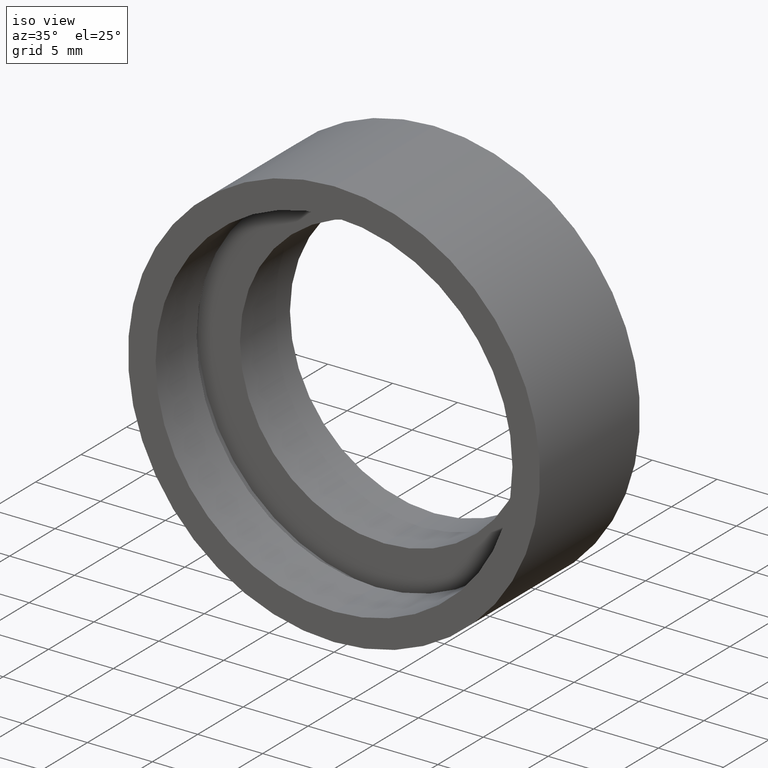
[diagram: clean part render]
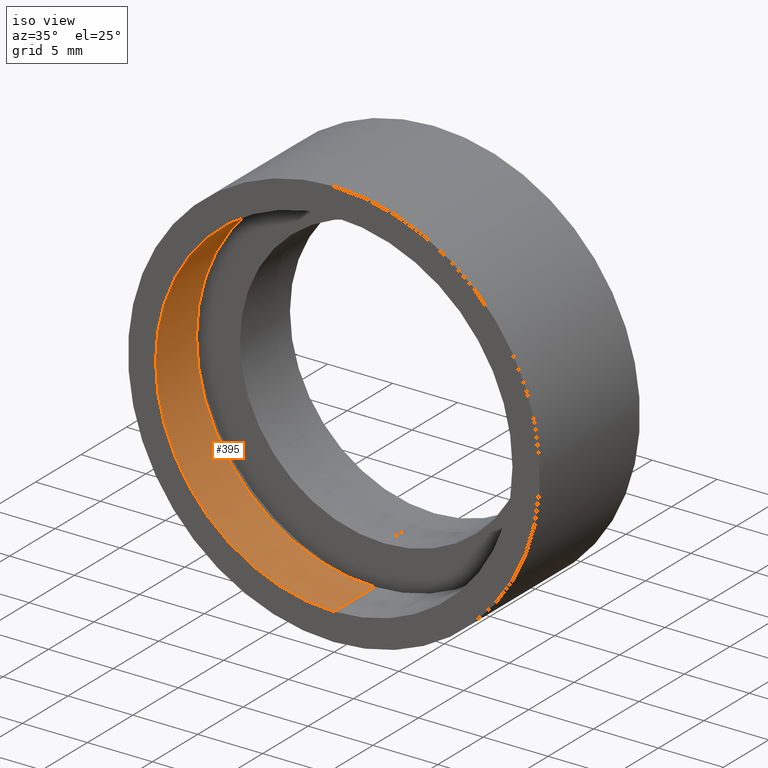
[diagram: same view with one face highlighted and labeled with its STEP entity id]
A machine part, iso view. The second image highlights one B-rep face of the part: STEP entity #395.
In plain terms, the highlighted cylindrical surface (partial cylindrical patch) has radius 13.75 mm, axis along (-0, 1, -0).
Its self-contained STEP definition (entity closure, byte-faithful):
#3 = ORIENTED_EDGE ( 'NONE', *, *, #234, .F. ) ;
#16 = DIRECTION ( 'NONE',  ( -0.0000000000000000000, 1.000000000000000000, -0.0000000000000000000 ) ) ;
#37 = DIRECTION ( 'NONE',  ( 0.0000000000000000000, 0.0000000000000000000, 1.000000000000000000 ) ) ;
#64 = DIRECTION ( 'NONE',  ( -0.0000000000000000000, 1.000000000000000000, -0.0000000000000000000 ) ) ;
#96 = DIRECTION ( 'NONE',  ( -0.0000000000000000000, 1.000000000000000000, -0.0000000000000000000 ) ) ;
#103 = DIRECTION ( 'NONE',  ( -0.0000000000000000000, 1.000000000000000000, -0.0000000000000000000 ) ) ;
#124 = EDGE_CURVE ( 'NONE', #186, #167, #192, .T. ) ;
#128 = AXIS2_PLACEMENT_3D ( 'NONE', #324, #64, #179 ) ;
#132 = AXIS2_PLACEMENT_3D ( 'NONE', #270, #16, #235 ) ;
#136 = CARTESIAN_POINT ( 'NONE',  ( 0.0000000000000000000, 60.02082041425541100, 0.0000000000000000000 ) ) ;
#150 = CARTESIAN_POINT ( 'NONE',  ( 0.0000000000000000000, 4.499999999999997300, 13.75000000000000700 ) ) ;
#165 = LINE ( 'NONE', #396, #260 ) ;
#167 = VERTEX_POINT ( 'NONE', #256 ) ;
#179 = DIRECTION ( 'NONE',  ( 0.0000000000000000000, 0.0000000000000000000, 1.000000000000000000 ) ) ;
#186 = VERTEX_POINT ( 'NONE', #346 ) ;
#192 = CIRCLE ( 'NONE', #128, 13.75000000000000700 ) ;
#196 = EDGE_LOOP ( 'NONE', ( #348, #212, #397, #3 ) ) ;
#212 = ORIENTED_EDGE ( 'NONE', *, *, #350, .T. ) ;
#213 = CYLINDRICAL_SURFACE ( 'NONE', #248, 13.75000000000000700 ) ;
#221 = VERTEX_POINT ( 'NONE', #150 ) ;
#234 = EDGE_CURVE ( 'NONE', #167, #221, #360, .T. ) ;
#235 = DIRECTION ( 'NONE',  ( 0.0000000000000000000, 0.0000000000000000000, 1.000000000000000000 ) ) ;
#248 = AXIS2_PLACEMENT_3D ( 'NONE', #136, #96, #37 ) ;
#252 = FACE_OUTER_BOUND ( 'NONE', #196, .T. ) ;
#256 = CARTESIAN_POINT ( 'NONE',  ( 0.0000000000000000000, 0.0000000000000000000, 13.75000000000000700 ) ) ;
#260 = VECTOR ( 'NONE', #356, 1000.000000000000000 ) ;
#270 = CARTESIAN_POINT ( 'NONE',  ( 0.0000000000000000000, 4.499999999999997300, 0.0000000000000000000 ) ) ;
#312 = CARTESIAN_POINT ( 'NONE',  ( 0.0000000000000000000, 60.02082041425541100, 13.75000000000000700 ) ) ;
#319 = EDGE_CURVE ( 'NONE', #340, #221, #423, .T. ) ;
#324 = CARTESIAN_POINT ( 'NONE',  ( 0.0000000000000000000, 0.0000000000000000000, 0.0000000000000000000 ) ) ;
#340 = VERTEX_POINT ( 'NONE', #403 ) ;
#346 = CARTESIAN_POINT ( 'NONE',  ( 1.683889348827611600E-015, 0.0000000000000000000, -13.75000000000000700 ) ) ;
#348 = ORIENTED_EDGE ( 'NONE', *, *, #124, .F. ) ;
#350 = EDGE_CURVE ( 'NONE', #186, #340, #165, .T. ) ;
#356 = DIRECTION ( 'NONE',  ( -0.0000000000000000000, 1.000000000000000000, -0.0000000000000000000 ) ) ;
#360 = LINE ( 'NONE', #312, #385 ) ;
#385 = VECTOR ( 'NONE', #103, 1000.000000000000000 ) ;
#395 = ADVANCED_FACE ( 'NONE', ( #252 ), #213, .F. ) ;
#396 = CARTESIAN_POINT ( 'NONE',  ( 1.683889348827611600E-015, 60.02082041425541100, -13.75000000000000700 ) ) ;
#397 = ORIENTED_EDGE ( 'NONE', *, *, #319, .T. ) ;
#403 = CARTESIAN_POINT ( 'NONE',  ( 1.683889348827611600E-015, 4.499999999999997300, -13.75000000000000700 ) ) ;
#423 = CIRCLE ( 'NONE', #132, 13.75000000000000700 ) ;